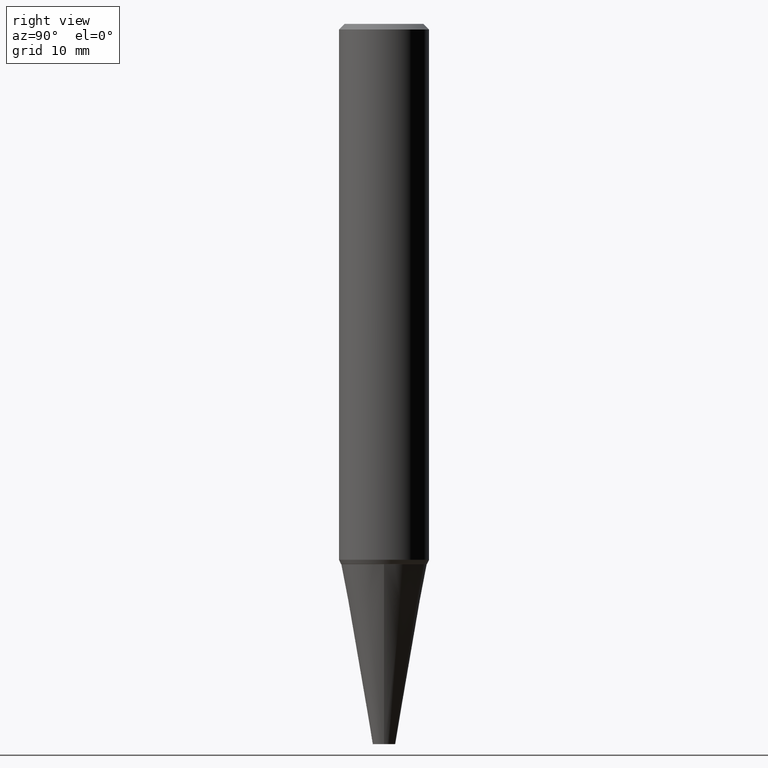
[diagram: clean part render]
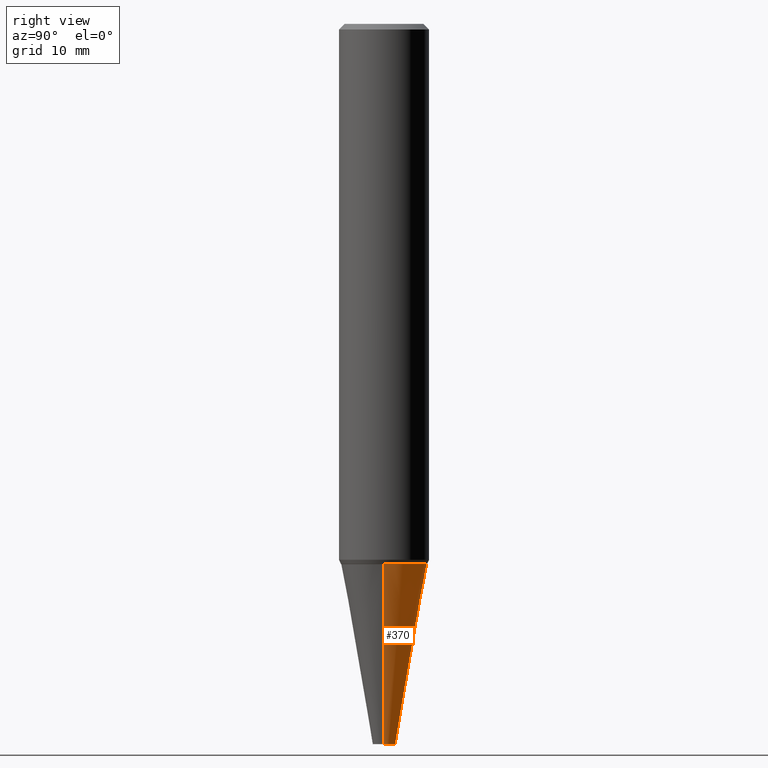
[diagram: same view with one face highlighted and labeled with its STEP entity id]
A machine part, right view. The second image highlights one B-rep face of the part: STEP entity #370.
In plain terms, the highlighted conical surface has half-angle 10 deg.
Its self-contained STEP definition (entity closure, byte-faithful):
#14 = LINE ( 'NONE', #174, #28 ) ;
#25 = AXIS2_PLACEMENT_3D ( 'NONE', #416, #208, #215 ) ;
#28 = VECTOR ( 'NONE', #142, 39.37007874015748143 ) ;
#32 = LINE ( 'NONE', #245, #238 ) ;
#34 = ORIENTED_EDGE ( 'NONE', *, *, #230, .F. ) ;
#57 = EDGE_CURVE ( 'NONE', #199, #327, #14, .T. ) ;
#58 = DIRECTION ( 'NONE',  ( -2.445468806185136597E-29, 3.491481338843145583E-15, 1.000000000000000000 ) ) ;
#65 = CARTESIAN_POINT ( 'NONE',  ( -0.2388269807084578700, -8.777476254070312315E-15, -2.999999999999999556 ) ) ;
#83 = AXIS2_PLACEMENT_3D ( 'NONE', #355, #314, #214 ) ;
#104 = VERTEX_POINT ( 'NONE', #275 ) ;
#114 = ORIENTED_EDGE ( 'NONE', *, *, #306, .T. ) ;
#121 = AXIS2_PLACEMENT_3D ( 'NONE', #218, #58, #246 ) ;
#142 = DIRECTION ( 'NONE',  ( -0.1736481776669235033, 4.672282404182295802E-15, 0.9848077530122092416 ) ) ;
#144 = CIRCLE ( 'NONE', #25, 0.2388269807084578700 ) ;
#162 = ORIENTED_EDGE ( 'NONE', *, *, #57, .T. ) ;
#167 = EDGE_LOOP ( 'NONE', ( #114, #162, #402, #34 ) ) ;
#172 = EDGE_CURVE ( 'NONE', #104, #327, #144, .T. ) ;
#174 = CARTESIAN_POINT ( 'NONE',  ( -0.06250000000000000000, -1.352183614552251971E-14, -4.000000000000000000 ) ) ;
#199 = VERTEX_POINT ( 'NONE', #307 ) ;
#208 = DIRECTION ( 'NONE',  ( -2.445468806185136597E-29, 3.491481338843145583E-15, 1.000000000000000000 ) ) ;
#214 = DIRECTION ( 'NONE',  ( 1.000000000000000000, -6.982962677686262766E-15, 0.000000000000000000 ) ) ;
#215 = DIRECTION ( 'NONE',  ( 1.000000000000000000, -6.982962677686269866E-15, 0.000000000000000000 ) ) ;
#218 = CARTESIAN_POINT ( 'NONE',  ( 9.781875224740546387E-29, -1.396592535537258233E-14, -4.000000000000000000 ) ) ;
#230 = EDGE_CURVE ( 'NONE', #263, #104, #32, .T. ) ;
#238 = VECTOR ( 'NONE', #345, 39.37007874015748143 ) ;
#245 = CARTESIAN_POINT ( 'NONE',  ( 0.06250000000000000000, -1.440236052272797400E-14, -4.000000000000000000 ) ) ;
#246 = DIRECTION ( 'NONE',  ( 1.000000000000000000, -6.982962677686262766E-15, 0.000000000000000000 ) ) ;
#249 = CARTESIAN_POINT ( 'NONE',  ( 0.06250000000000000000, -1.440236052272797400E-14, -4.000000000000000000 ) ) ;
#263 = VERTEX_POINT ( 'NONE', #249 ) ;
#275 = CARTESIAN_POINT ( 'NONE',  ( 0.2388269807084578700, -1.214216390924109467E-14, -2.999999999999999556 ) ) ;
#302 = CIRCLE ( 'NONE', #121, 0.06250000000000000000 ) ;
#306 = EDGE_CURVE ( 'NONE', #263, #199, #302, .T. ) ;
#307 = CARTESIAN_POINT ( 'NONE',  ( -0.06250000000000000000, -1.114965619979641601E-14, -4.000000000000000000 ) ) ;
#314 = DIRECTION ( 'NONE',  ( -2.445468806185136597E-29, 3.491481338843145583E-15, 1.000000000000000000 ) ) ;
#327 = VERTEX_POINT ( 'NONE', #65 ) ;
#345 = DIRECTION ( 'NONE',  ( 0.1736481776669235033, 2.225859148293817317E-15, 0.9848077530122092416 ) ) ;
#355 = CARTESIAN_POINT ( 'NONE',  ( 9.781875224740546387E-29, -1.396592535537258233E-14, -4.000000000000000000 ) ) ;
#358 = CONICAL_SURFACE ( 'NONE', #83, 0.06250000000000000000, 0.1745329251994260089 ) ;
#370 = ADVANCED_FACE ( 'NONE', ( #389 ), #358, .T. ) ;
#389 = FACE_OUTER_BOUND ( 'NONE', #167, .T. ) ;
#402 = ORIENTED_EDGE ( 'NONE', *, *, #172, .F. ) ;
#416 = CARTESIAN_POINT ( 'NONE',  ( 7.336406418555408669E-29, -1.047444401652943478E-14, -2.999999999999999556 ) ) ;